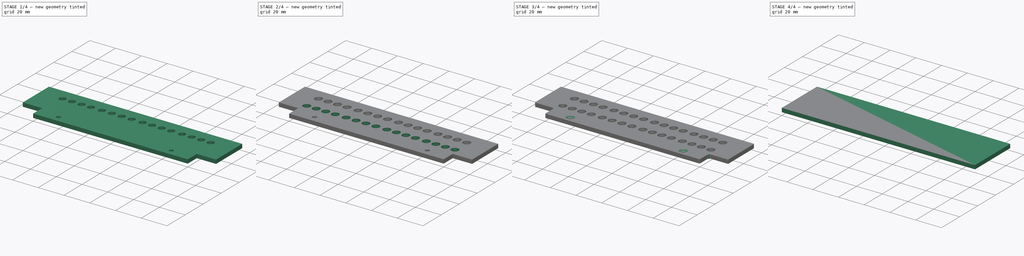
[diagram: build sequence overview — one tinted view per stage of 4, left to right]
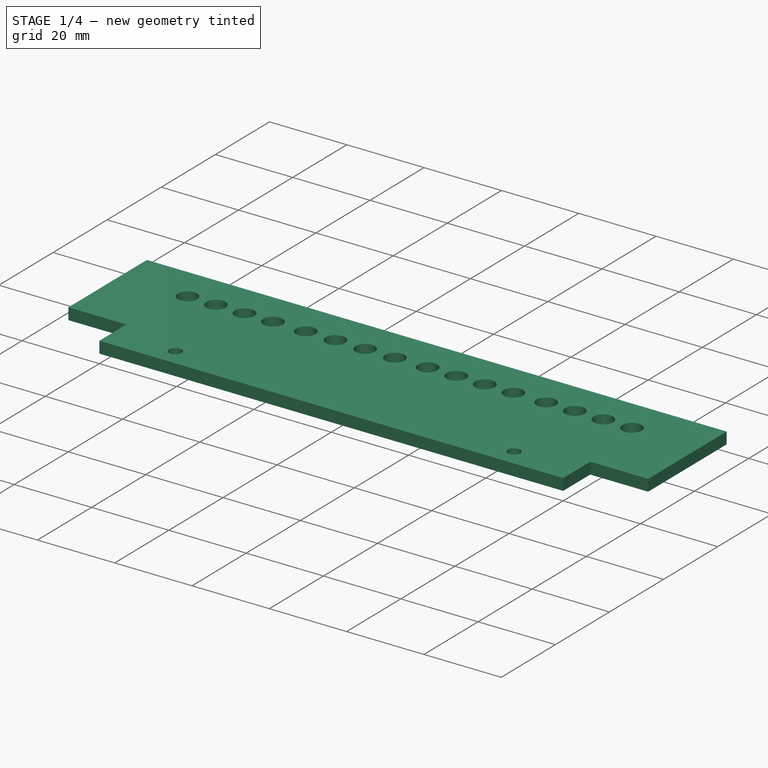
[diagram: stage 1 of 4 — iso view after this stage's code; geometry added in this stage tinted green]
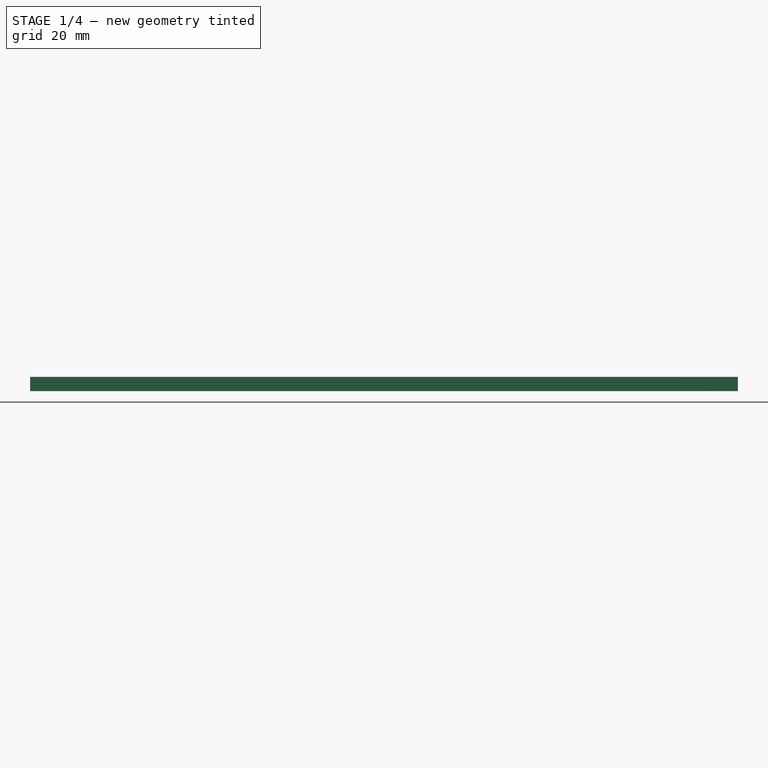
[diagram: stage 1 of 4 — front view after this stage's code; geometry added in this stage tinted green]
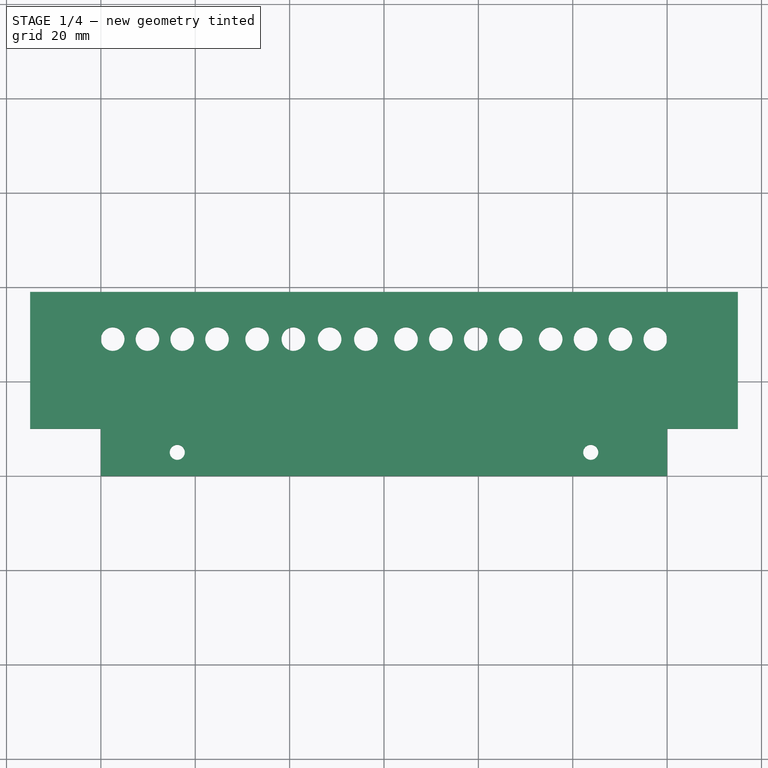
[diagram: stage 1 of 4 — top view after this stage's code; geometry added in this stage tinted green]
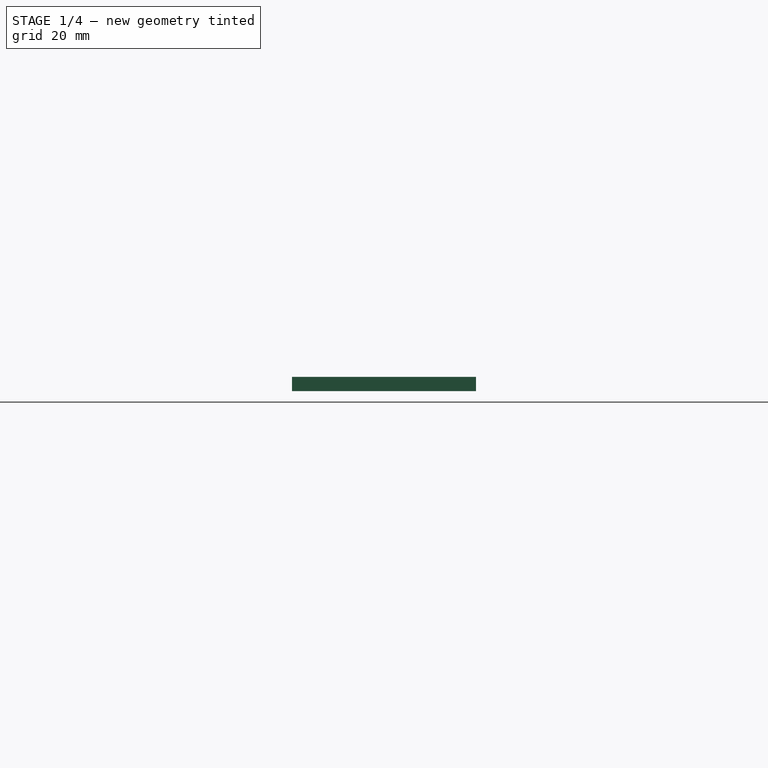
[diagram: stage 1 of 4 — right view after this stage's code; geometry added in this stage tinted green]
FCSTD DOCUMENT  (FreeCAD 0.19R23141 (Git))
Label: memory-panel
License: All rights reserved
LicenseURL: http://en.wikipedia.org/wiki/All_rights_reserved
objects: Path::FeaturePython×5, Sketcher::SketchObject×3, PartDesign::Pocket×2, PartDesign::LinearPattern×2, PartDesign::Fillet×2, Part::FeaturePython×2, PartDesign::Pad×1, PartDesign::Chamfer×1, PartDesign::Body×1, App::FeaturePython×1, App::DocumentObjectGroup×1, Path::FeatureCompoundPython×1
note: 23 computed .brp shape members not serialized (recipe doc carries the construction recipe); baked Part::Feature solids carry a one-line shape summary decoded from their .brp

FEATURE [Sketcher::SketchObject] Sketch
  MapMode = 5
  Support = -> [XY_Plane]
  sketch-geometry (10):
    g0: LineSegment StartX=-75 StartY=39 StartZ=0 EndX=-75 EndY=10 EndZ=0
    g1: LineSegment StartX=-75 StartY=10 StartZ=0 EndX=-60 EndY=10 EndZ=0
    g2: LineSegment StartX=-60 StartY=10 StartZ=0 EndX=-60 EndY=0 EndZ=0
    g3: LineSegment StartX=-60 StartY=0 StartZ=0 EndX=60 EndY=0 EndZ=0
    g4: LineSegment StartX=60 StartY=0 StartZ=0 EndX=60 EndY=10 EndZ=0
    g5: LineSegment StartX=60 StartY=10 StartZ=0 EndX=75 EndY=10 EndZ=0
    g6: LineSegment StartX=75 StartY=10 StartZ=0 EndX=75 EndY=39 EndZ=0
    g7: LineSegment StartX=75 StartY=39 StartZ=0 EndX=-75 EndY=39 EndZ=0
    g8: Circle CenterX=-43.815 CenterY=5 CenterZ=0 NormalX=0 NormalY=0 NormalZ=1 AngleXU=0 Radius=1.6
    g9: Circle CenterX=43.815 CenterY=5 CenterZ=0 NormalX=0 NormalY=0 NormalZ=1 AngleXU=0 Radius=1.6
  constraints (29):
    c: Vertical(g0)
    c: Coincident(g0,g1)
    c: Horizontal(g1)
    c: Coincident(g1,g2)
    c: PointOnObject(g2,g-1)
    c: Vertical(g2)
    c: Coincident(g2,g3)
    c: PointOnObject(g3,g-1)
    c: Coincident(g3,g4)
    c: Vertical(g4)
    c: Coincident(g4,g5)
    c: Coincident(g5,g6)
    c: Vertical(g6)
    c: Coincident(g6,g7)
    c: Coincident(g7,g0)
    c: Horizontal(g7)
    c: Symmetric(g1,g4,g-2)
    c: Symmetric(g0,g5,g-2)
    c: DistanceY(g-1,g0) = 39
    c: DistanceX(g7,g7) = 150
    c: Equal(g8,g9)
    c: Symmetric(g8,g9,g-2)
    c: Radius(g8) = 1.6
    c: DistanceX(g8,g9) = 87.63
    c: DistanceY(g2,g8) = 5
    c: DistanceY(g2,g2) = 10
    c: DistanceX(g1,g4) = 120
    c: DistanceX(g0,g8) = 31.185
    c: DistanceX(g0,g9) = 118.815
FEATURE [PartDesign::Pad] Pad
  Direction = (1,1,1)
  Length = 3
  Length2 = 100
  Profile = -> Sketch
  Refine = true
  Type = 0
FEATURE [Sketcher::SketchObject] Sketch001
  ExternalGeometry = -> [Pad]
  MapMode = 5
  Placement = pos=(0,0,3) rot=(0,0,1;0rad)
  Support = -> [Pad]
  sketch-geometry (31):
    g0: Circle CenterX=-57.5 CenterY=29 CenterZ=0 NormalX=0 NormalY=0 NormalZ=1 AngleXU=0 Radius=2.5
    g1: Circle CenterX=-50.13 CenterY=29 CenterZ=0 NormalX=0 NormalY=0 NormalZ=1 AngleXU=0 Radius=2.5
    g2: Circle CenterX=-42.7601 CenterY=29 CenterZ=0 NormalX=0 NormalY=0 NormalZ=1 AngleXU=0 Radius=2.5
    g3: Circle CenterX=-35.3901 CenterY=29 CenterZ=0 NormalX=0 NormalY=0 NormalZ=1 AngleXU=0 Radius=2.5
    g4: Circle CenterX=-26.8901 CenterY=29 CenterZ=0 NormalX=0 NormalY=0 NormalZ=1 AngleXU=0 Radius=2.5
    g5: Circle CenterX=-19.2064 CenterY=29 CenterZ=0 NormalX=0 NormalY=0 NormalZ=1 AngleXU=0 Radius=2.5
    g6: Circle CenterX=-11.5226 CenterY=29 CenterZ=0 NormalX=0 NormalY=0 NormalZ=1 AngleXU=0 Radius=2.5
    g7: Circle CenterX=-3.83886 CenterY=29 CenterZ=0 NormalX=0 NormalY=0 NormalZ=1 AngleXU=0 Radius=2.5
    g8: Circle CenterX=4.66114 CenterY=29 CenterZ=0 NormalX=0 NormalY=0 NormalZ=1 AngleXU=0 Radius=2.5
    g9: Circle CenterX=12.0487 CenterY=29 CenterZ=0 NormalX=0 NormalY=0 NormalZ=1 AngleXU=0 Radius=2.5
    g10: Circle CenterX=19.4363 CenterY=29 CenterZ=0 NormalX=0 NormalY=0 NormalZ=1 AngleXU=0 Radius=2.5
    g11: Circle CenterX=26.8239 CenterY=29 CenterZ=0 NormalX=0 NormalY=0 NormalZ=1 AngleXU=0 Radius=2.5
    g12: Circle CenterX=35.3239 CenterY=29 CenterZ=0 NormalX=0 NormalY=0 NormalZ=1 AngleXU=0 Radius=2.5
    g13: Circle CenterX=42.716 CenterY=29 CenterZ=0 NormalX=0 NormalY=0 NormalZ=1 AngleXU=0 Radius=2.5
    g14: Circle CenterX=50.108 CenterY=29 CenterZ=0 NormalX=0 NormalY=0 NormalZ=1 AngleXU=0 Radius=2.5
    g15: Circle CenterX=57.5 CenterY=29 CenterZ=0 NormalX=0 NormalY=0 NormalZ=1 AngleXU=0 Radius=2.5
    g16: LineSegment [constr] StartX=-57.5 StartY=29 StartZ=0 EndX=-50.13 EndY=29 EndZ=0
    g17: LineSegment [constr] StartX=-50.13 StartY=29 StartZ=0 EndX=-42.7601 EndY=29 EndZ=0
    g18: LineSegment [constr] StartX=-42.7601 StartY=29 StartZ=0 EndX=-35.3901 EndY=29 EndZ=0
    g19: LineSegment [constr] StartX=-26.8901 StartY=29 StartZ=0 EndX=-19.2064 EndY=29 EndZ=0
    g20: LineSegment [constr] StartX=-19.2064 StartY=29 StartZ=0 EndX=-11.5226 EndY=29 EndZ=0
    g21: LineSegment [constr] StartX=-11.5226 StartY=29 StartZ=0 EndX=-3.83886 EndY=29 EndZ=0
    g22: LineSegment [constr] StartX=4.66114 StartY=29 StartZ=0 EndX=12.0487 EndY=29 EndZ=0
    g23: LineSegment [constr] StartX=12.0487 StartY=29 StartZ=0 EndX=19.4363 EndY=29 EndZ=0
    g24: LineSegment [constr] StartX=19.4363 StartY=29 StartZ=0 EndX=26.8239 EndY=29 EndZ=0
    g25: LineSegment [constr] StartX=35.3239 StartY=29 StartZ=0 EndX=42.716 EndY=29 EndZ=0
    g26: LineSegment [constr] StartX=42.716 StartY=29 StartZ=0 EndX=50.108 EndY=29 EndZ=0
    g27: LineSegment [constr] StartX=50.108 StartY=29 StartZ=0 EndX=57.5 EndY=29 EndZ=0
    g28: LineSegment [constr] StartX=-35.3901 StartY=29 StartZ=0 EndX=-26.8901 EndY=29 EndZ=0
    g29: LineSegment [constr] StartX=-3.83886 StartY=29 StartZ=0 EndX=4.66114 EndY=29 EndZ=0
    g30: LineSegment [constr] StartX=26.8239 StartY=29 StartZ=0 EndX=35.3239 EndY=29 EndZ=0
  constraints (78):
    c: Equal(g1,g0)
    c: Equal(g0,g2)
    c: Equal(g2,g3)
    c: Radius(g0) = 2.5
    c: Horizontal(g0,g1)
    c: Horizontal(g1,g2)
    c: Horizontal(g2,g3)
    c: Equal(g5,g4)
    c: Equal(g4,g6)
    c: Equal(g6,g7)
    c: Equal(g0,g4) = 2.5
    c: Horizontal(g4,g5)
    c: Horizontal(g5,g6)
    c: Horizontal(g6,g7)
    c: Equal(g9,g8)
    c: Equal(g8,g10)
    c: Equal(g10,g11)
    c: Equal(g0,g8) = 2.5
    c: Horizontal(g8,g9)
    c: Horizontal(g9,g10)
    c: Horizontal(g10,g11)
    c: Equal(g13,g12)
    c: Equal(g12,g14)
    c: Equal(g14,g15)
    c: Equal(g8,g12) = 2.5
    c: Horizontal(g12,g13)
    c: Horizontal(g13,g14)
    c: Horizontal(g14,g15)
    c: Horizontal(g0,g4)
    c: Horizontal(g4,g8)
    c: Coincident(g16,g0)
    c: Coincident(g16,g1)
    c: Coincident(g17,g1)
    c: Coincident(g17,g2)
    c: Coincident(g18,g2)
    c: Coincident(g18,g3)
    c: Coincident(g19,g4)
    c: Coincident(g19,g5)
    c: Coincident(g20,g5)
    c: Coincident(g20,g6)
    c: Coincident(g21,g7)
    c: Coincident(g22,g8)
    c: Coincident(g22,g9)
    c: Coincident(g23,g9)
    c: Coincident(g23,g10)
    c: Coincident(g24,g10)
    c: Coincident(g24,g11)
    c: Coincident(g25,g12)
    c: Coincident(g25,g13)
    c: Coincident(g26,g13)
    c: Coincident(g26,g14)
    c: Coincident(g27,g14)
    c: Coincident(g27,g15)
    c: Symmetric(g0,g15,g-2)
    c: Equal(g16,g17)
    c: Equal(g17,g18)
    c: Equal(g19,g20)
    c: Equal(g20,g21)
    c: Equal(g22,g23)
    c: Equal(g23,g24)
    c: Equal(g25,g26)
    c: Equal(g26,g27)
    c: DistanceX(g0,g15) = 115
    c: Coincident(g6,g21)
    c: DistanceY(g0,g-3) = 10
    c: Coincident(g28,g3)
    c: Coincident(g28,g4)
    c: Coincident(g29,g7)
    c: Coincident(g29,g8)
    c: Coincident(g30,g11)
    c: Coincident(g30,g12)
    c: Equal(g30,g29)
    c: Equal(g29,g28)
    c: DistanceX(g28,g28) = 8.5
    c: DistanceX(g23,g23) = 7.3876
    c: DistanceX(g0,g1) = 7.36997
    c: DistanceX(g0,g4) = 30.6099
    c: DistanceY(g-1,g0) = 29
FEATURE [PartDesign::Pocket] Pocket
  BaseFeature = -> Pad
  Length = 5
  Length2 = 100
  Profile = -> Sketch001
  Refine = true
  Type = 1
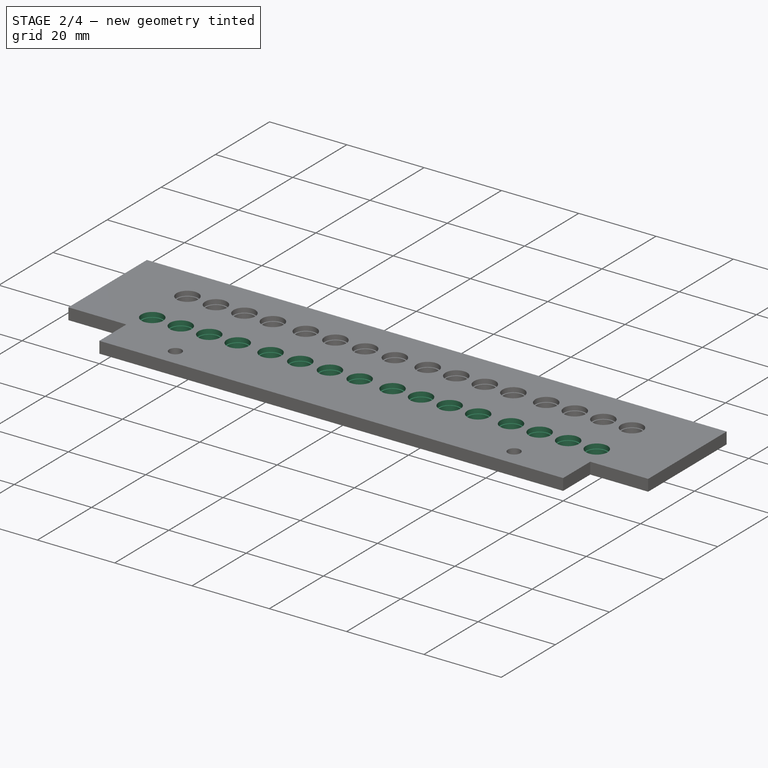
[diagram: stage 2 of 4 — iso view after this stage's code; geometry added in this stage tinted green]
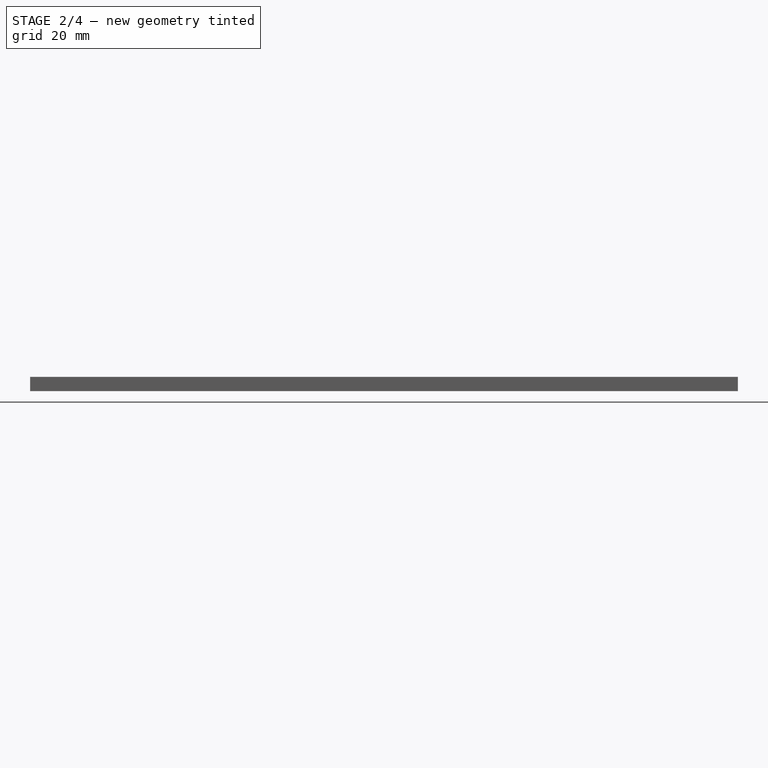
[diagram: stage 2 of 4 — front view after this stage's code; geometry added in this stage tinted green]
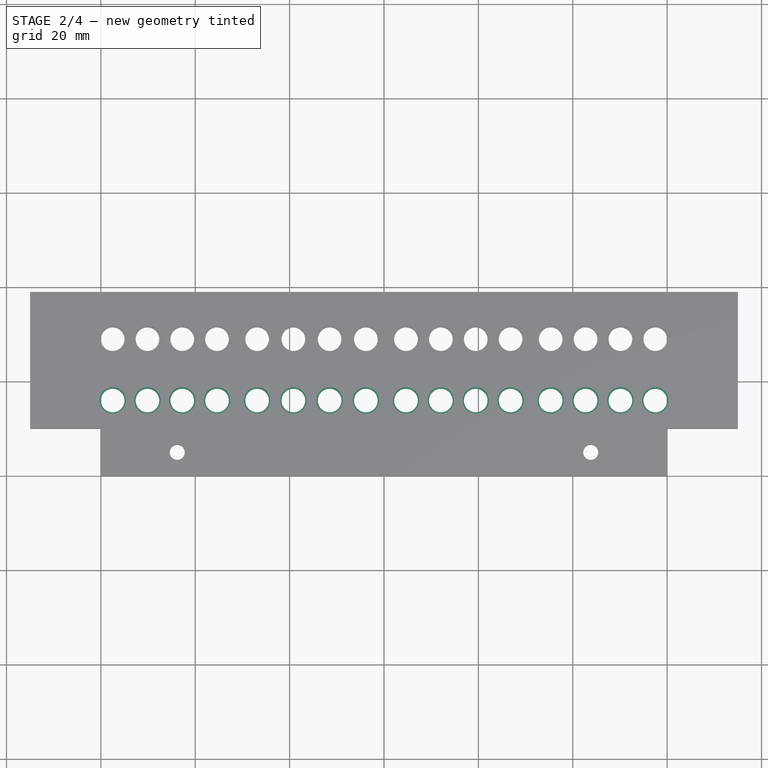
[diagram: stage 2 of 4 — top view after this stage's code; geometry added in this stage tinted green]
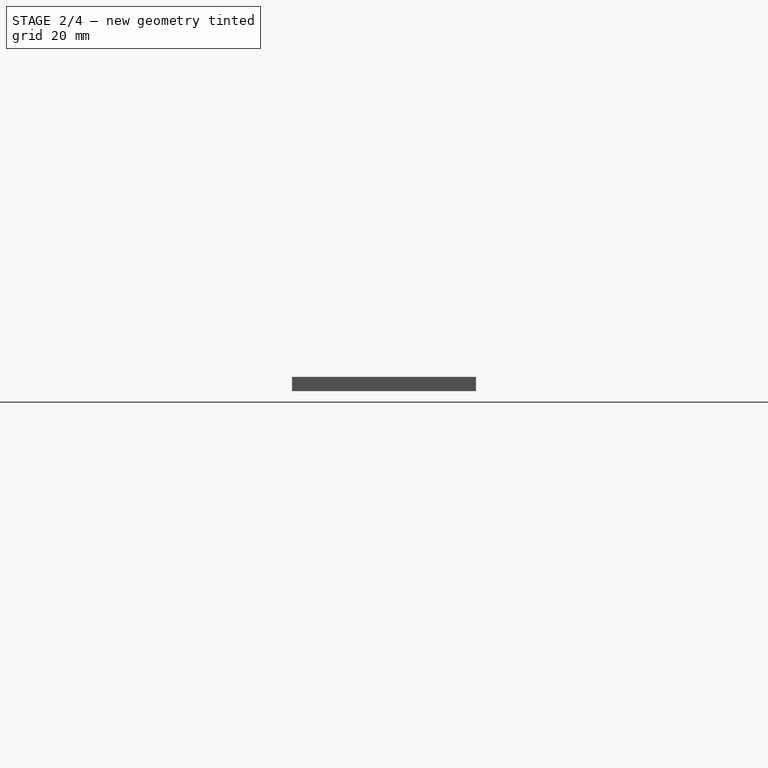
[diagram: stage 2 of 4 — right view after this stage's code; geometry added in this stage tinted green]
FEATURE [PartDesign::LinearPattern] LinearPattern
  BaseFeature = -> Pocket
  Direction = -> Sketch001 [V_Axis]
  Length = 13
  Occurrences = 2
  Originals = -> [Pocket]
  Refine = true
  Reversed = true
FEATURE [Sketcher::SketchObject] Sketch002
  ExternalGeometry = -> [Pad]
  MapMode = 5
  Placement = pos=(0,0,3) rot=(0,0,1;0rad)
  Support = -> [Pad]
  sketch-geometry (31):
    g0: Circle CenterX=-57.5 CenterY=29 CenterZ=0 NormalX=0 NormalY=0 NormalZ=1 AngleXU=0 Radius=2.8
    g1: Circle CenterX=-50.13 CenterY=29 CenterZ=0 NormalX=0 NormalY=0 NormalZ=1 AngleXU=0 Radius=2.8
    g2: Circle CenterX=-42.7601 CenterY=29 CenterZ=0 NormalX=0 NormalY=0 NormalZ=1 AngleXU=0 Radius=2.8
    g3: Circle CenterX=-35.3901 CenterY=29 CenterZ=0 NormalX=0 NormalY=0 NormalZ=1 AngleXU=0 Radius=2.8
    g4: Circle CenterX=-26.8901 CenterY=29 CenterZ=0 NormalX=0 NormalY=0 NormalZ=1 AngleXU=0 Radius=2.8
    g5: Circle CenterX=-19.2064 CenterY=29 CenterZ=0 NormalX=0 NormalY=0 NormalZ=1 AngleXU=0 Radius=2.8
    g6: Circle CenterX=-11.5226 CenterY=29 CenterZ=0 NormalX=0 NormalY=0 NormalZ=1 AngleXU=0 Radius=2.8
    g7: Circle CenterX=-3.83886 CenterY=29 CenterZ=0 NormalX=0 NormalY=0 NormalZ=1 AngleXU=0 Radius=2.8
    g8: Circle CenterX=4.66114 CenterY=29 CenterZ=0 NormalX=0 NormalY=0 NormalZ=1 AngleXU=0 Radius=2.8
    g9: Circle CenterX=12.0487 CenterY=29 CenterZ=0 NormalX=0 NormalY=0 NormalZ=1 AngleXU=0 Radius=2.8
    g10: Circle CenterX=19.4363 CenterY=29 CenterZ=0 NormalX=0 NormalY=0 NormalZ=1 AngleXU=0 Radius=2.8
    g11: Circle CenterX=26.8239 CenterY=29 CenterZ=0 NormalX=0 NormalY=0 NormalZ=1 AngleXU=0 Radius=2.8
    g12: Circle CenterX=35.3239 CenterY=29 CenterZ=0 NormalX=0 NormalY=0 NormalZ=1 AngleXU=0 Radius=2.8
    g13: Circle CenterX=42.716 CenterY=29 CenterZ=0 NormalX=0 NormalY=0 NormalZ=1 AngleXU=0 Radius=2.8
    g14: Circle CenterX=50.108 CenterY=29 CenterZ=0 NormalX=0 NormalY=0 NormalZ=1 AngleXU=0 Radius=2.8
    g15: Circle CenterX=57.5 CenterY=29 CenterZ=0 NormalX=0 NormalY=0 NormalZ=1 AngleXU=0 Radius=2.8
    g16: LineSegment [constr] StartX=-57.5 StartY=29 StartZ=0 EndX=-50.13 EndY=29 EndZ=0
    g17: LineSegment [constr] StartX=-50.13 StartY=29 StartZ=0 EndX=-42.7601 EndY=29 EndZ=0
    g18: LineSegment [constr] StartX=-42.7601 StartY=29 StartZ=0 EndX=-35.3901 EndY=29 EndZ=0
    g19: LineSegment [constr] StartX=-26.8901 StartY=29 StartZ=0 EndX=-19.2064 EndY=29 EndZ=0
    g20: LineSegment [constr] StartX=-19.2064 StartY=29 StartZ=0 EndX=-11.5226 EndY=29 EndZ=0
    g21: LineSegment [constr] StartX=-11.5226 StartY=29 StartZ=0 EndX=-3.83886 EndY=29 EndZ=0
    g22: LineSegment [constr] StartX=4.66114 StartY=29 StartZ=0 EndX=12.0487 EndY=29 EndZ=0
    g23: LineSegment [constr] StartX=12.0487 StartY=29 StartZ=0 EndX=19.4363 EndY=29 EndZ=0
    g24: LineSegment [constr] StartX=19.4363 StartY=29 StartZ=0 EndX=26.8239 EndY=29 EndZ=0
    g25: LineSegment [constr] StartX=35.3239 StartY=29 StartZ=0 EndX=42.716 EndY=29 EndZ=0
    g26: LineSegment [constr] StartX=42.716 StartY=29 StartZ=0 EndX=50.108 EndY=29 EndZ=0
    g27: LineSegment [constr] StartX=50.108 StartY=29 StartZ=0 EndX=57.5 EndY=29 EndZ=0
    g28: LineSegment [constr] StartX=-35.3901 StartY=29 StartZ=0 EndX=-26.8901 EndY=29 EndZ=0
    g29: LineSegment [constr] StartX=-3.83886 StartY=29 StartZ=0 EndX=4.66114 EndY=29 EndZ=0
    g30: LineSegment [constr] StartX=26.8239 StartY=29 StartZ=0 EndX=35.3239 EndY=29 EndZ=0
  constraints (75):
    c: Equal(g1,g0)
    c: Equal(g0,g2)
    c: Equal(g2,g3)
    c: Radius(g0) = 2.8
    c: Horizontal(g0,g1)
    c: Horizontal(g1,g2)
    c: Horizontal(g2,g3)
    c: Equal(g5,g4)
    c: Equal(g4,g6)
    c: Equal(g6,g7)
    c: Equal(g0,g4) = 2.5
    c: Horizontal(g4,g5)
    c: Horizontal(g5,g6)
    c: Horizontal(g6,g7)
    c: Equal(g9,g8)
    c: Equal(g8,g10)
    c: Equal(g10,g11)
    c: Equal(g0,g8) = 2.5
    c: Horizontal(g8,g9)
    c: Horizontal(g9,g10)
    c: Horizontal(g10,g11)
    c: Equal(g13,g12)
    c: Equal(g12,g14)
    c: Equal(g14,g15)
    c: Equal(g8,g12) = 2.5
    c: Horizontal(g12,g13)
    c: Horizontal(g13,g14)
    c: Horizontal(g14,g15)
    c: Horizontal(g0,g4)
    c: Horizontal(g4,g8)
    c: Coincident(g16,g0)
    c: Coincident(g16,g1)
    c: Coincident(g17,g1)
    c: Coincident(g17,g2)
    c: Coincident(g18,g2)
    c: Coincident(g18,g3)
    c: Coincident(g19,g4)
    c: Coincident(g19,g5)
    c: Coincident(g20,g5)
    c: Coincident(g20,g6)
    c: Coincident(g21,g7)
    c: Coincident(g22,g8)
    c: Coincident(g22,g9)
    c: Coincident(g23,g9)
    c: Coincident(g23,g10)
    c: Coincident(g24,g10)
    c: Coincident(g24,g11)
    c: Coincident(g25,g12)
    c: Coincident(g25,g13)
    c: Coincident(g26,g13)
    c: Coincident(g26,g14)
    c: Coincident(g27,g14)
    c: Coincident(g27,g15)
    c: Symmetric(g0,g15,g-2)
    c: Equal(g16,g17)
    c: Equal(g17,g18)
    c: Equal(g19,g20)
    c: Equal(g20,g21)
    c: Equal(g22,g23)
    c: Equal(g23,g24)
    c: Equal(g25,g26)
    c: Equal(g26,g27)
    c: DistanceX(g0,g15) = 115
    c: Coincident(g6,g21)
    c: DistanceY(g0,g-3) = 10
    c: Coincident(g28,g3)
    c: Coincident(g28,g4)
    c: Coincident(g29,g7)
    c: Coincident(g29,g8)
    c: Coincident(g30,g11)
    c: Coincident(g30,g12)
    c: Equal(g30,g29)
    c: Equal(g29,g28)
    c: DistanceX(g28,g28) = 8.5
    c: DistanceX(g23,g23) = 7.3876
FEATURE [PartDesign::Pocket] Pocket001
  BaseFeature = -> LinearPattern
  Length = 1.2
  Length2 = 100
  Profile = -> Sketch002
  Refine = true
  Type = 0
FEATURE [PartDesign::LinearPattern] LinearPattern001
  BaseFeature = -> Pocket001
  Direction = -> Sketch002 [V_Axis]
  Length = 13
  Occurrences = 2
  Originals = -> [Pocket001]
  Refine = true
  Reversed = true
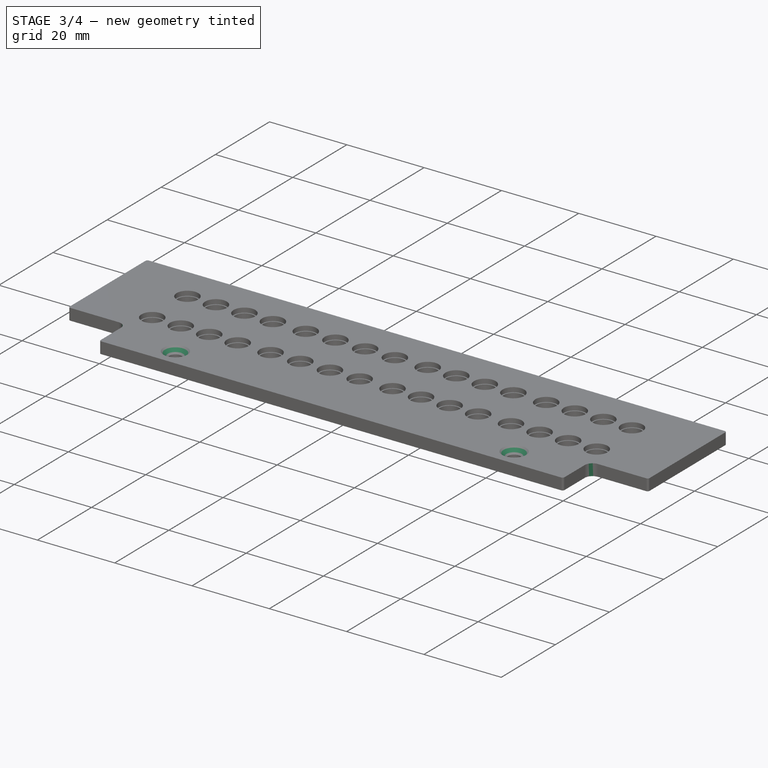
[diagram: stage 3 of 4 — iso view after this stage's code; geometry added in this stage tinted green]
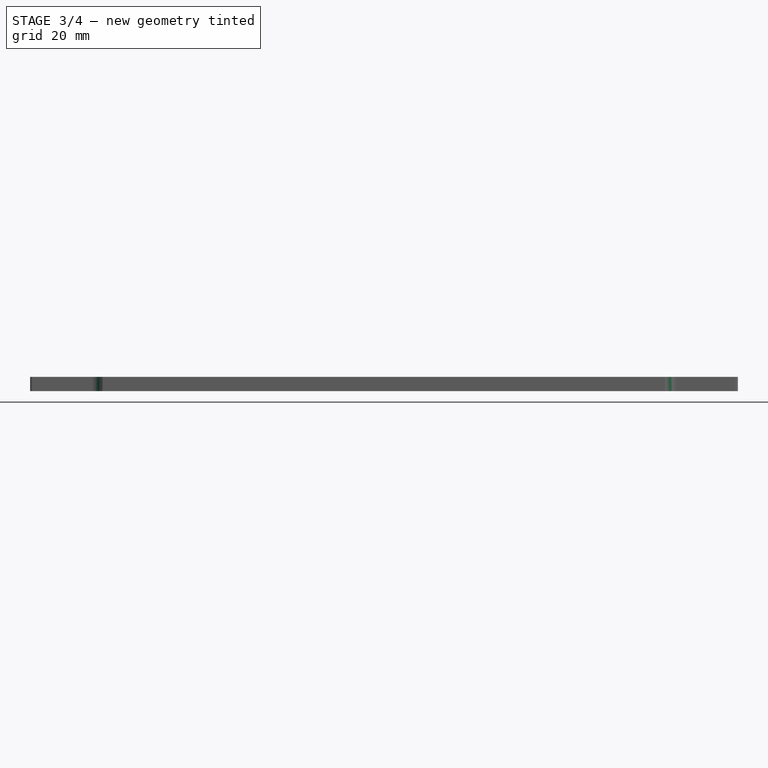
[diagram: stage 3 of 4 — front view after this stage's code; geometry added in this stage tinted green]
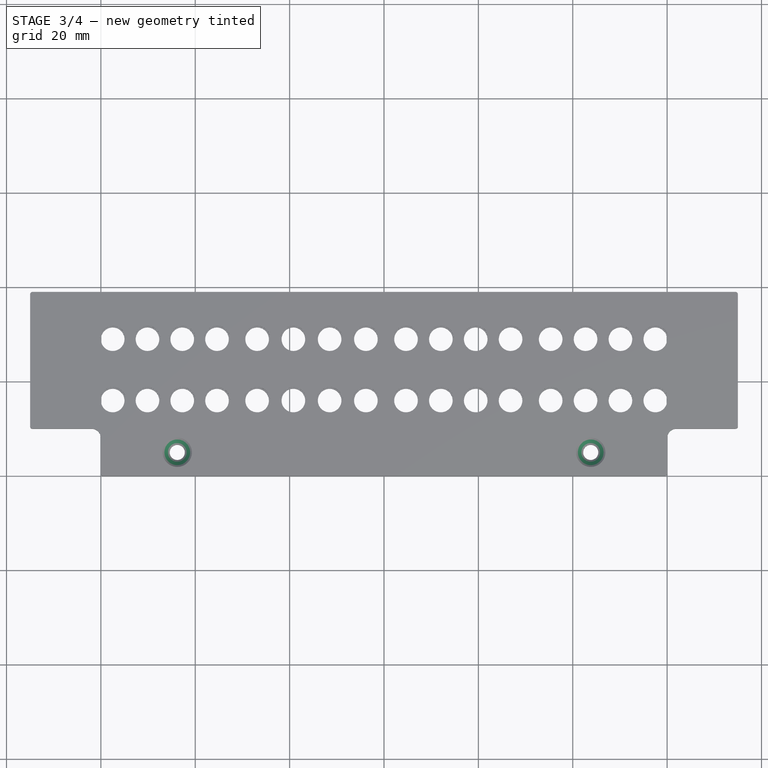
[diagram: stage 3 of 4 — top view after this stage's code; geometry added in this stage tinted green]
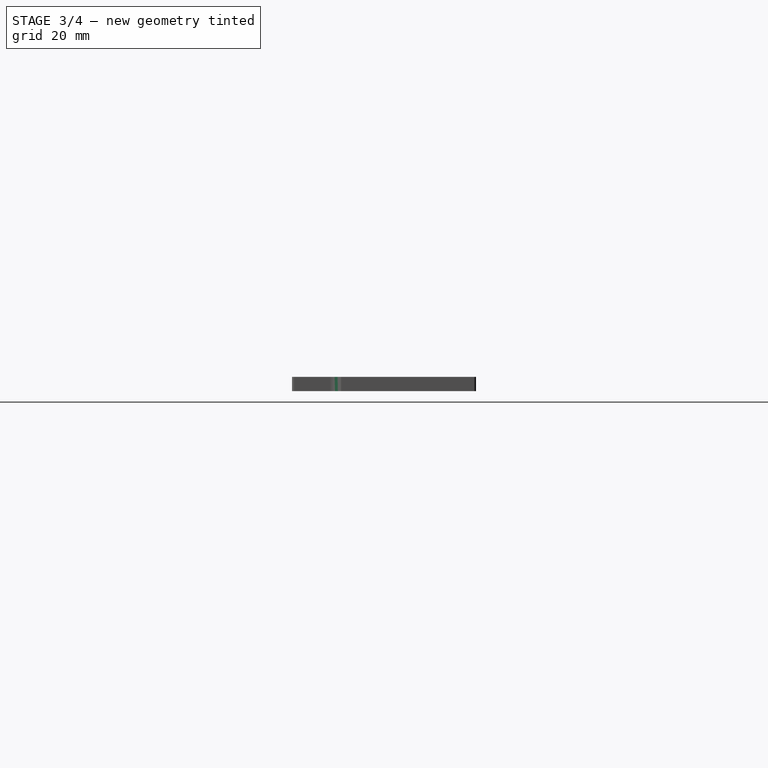
[diagram: stage 3 of 4 — right view after this stage's code; geometry added in this stage tinted green]
FEATURE [PartDesign::Chamfer] Chamfer
  Angle = 45
  Base = -> LinearPattern001 [Edge55,Edge64]
  BaseFeature = -> LinearPattern001
  ChamferType = 0
  FlipDirection = false
  Refine = true
  Size = 1.5
  Size2 = 1
  SupportTransform = false
FEATURE [PartDesign::Fillet] Fillet
  Base = -> Chamfer [Edge56,Edge50]
  BaseFeature = -> Chamfer
  Radius = 2
  Refine = true
  SupportTransform = false
FEATURE [PartDesign::Fillet] Fillet001
  Base = -> Fillet [Edge58,Edge56,Edge53,Edge47,Edge50,Edge54]
  BaseFeature = -> Fillet
  Radius = 0.5
  Refine = true
  SupportTransform = false
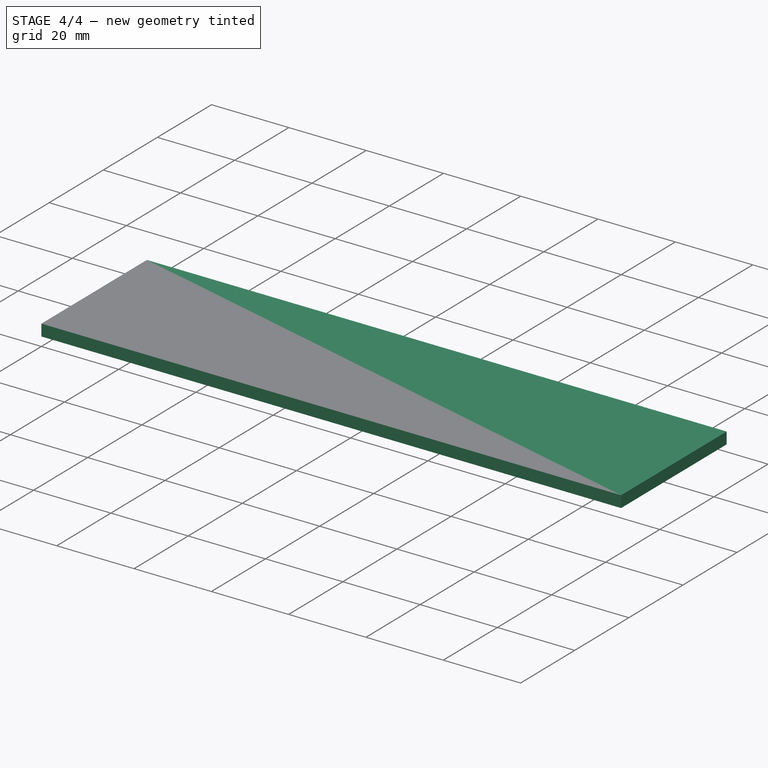
[diagram: stage 4 of 4 — iso view after this stage's code; geometry added in this stage tinted green]
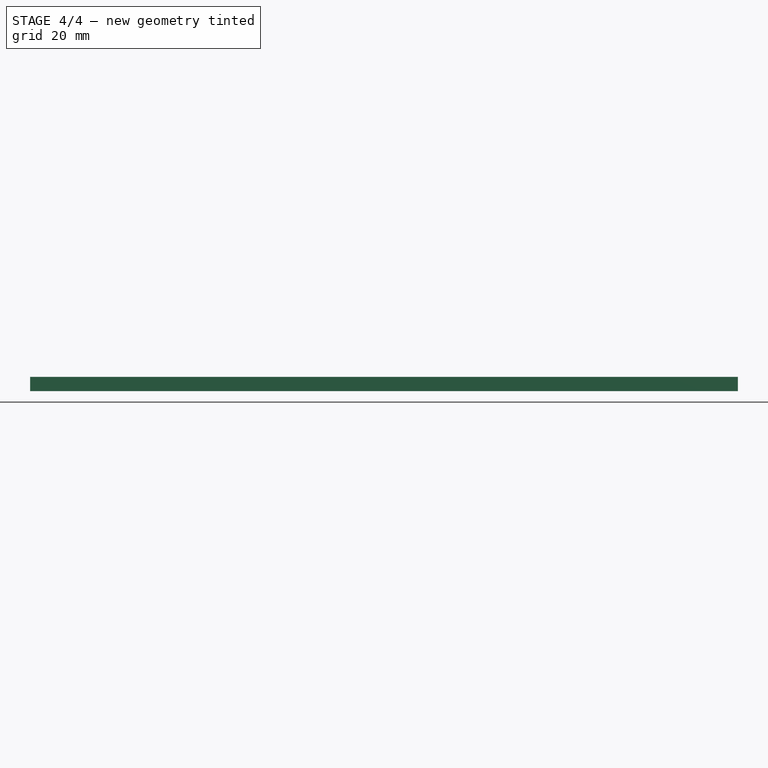
[diagram: stage 4 of 4 — front view after this stage's code; geometry added in this stage tinted green]
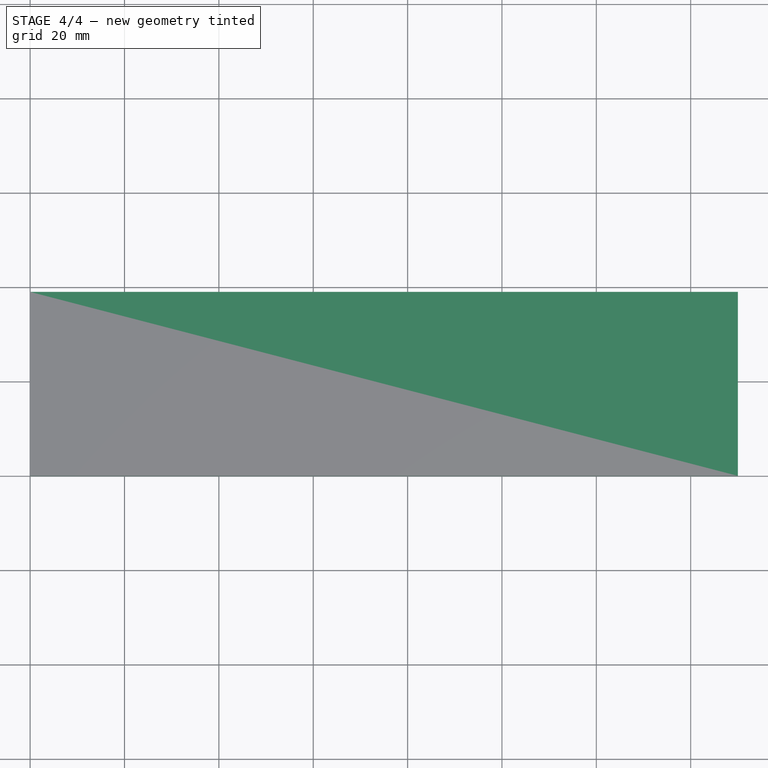
[diagram: stage 4 of 4 — top view after this stage's code; geometry added in this stage tinted green]
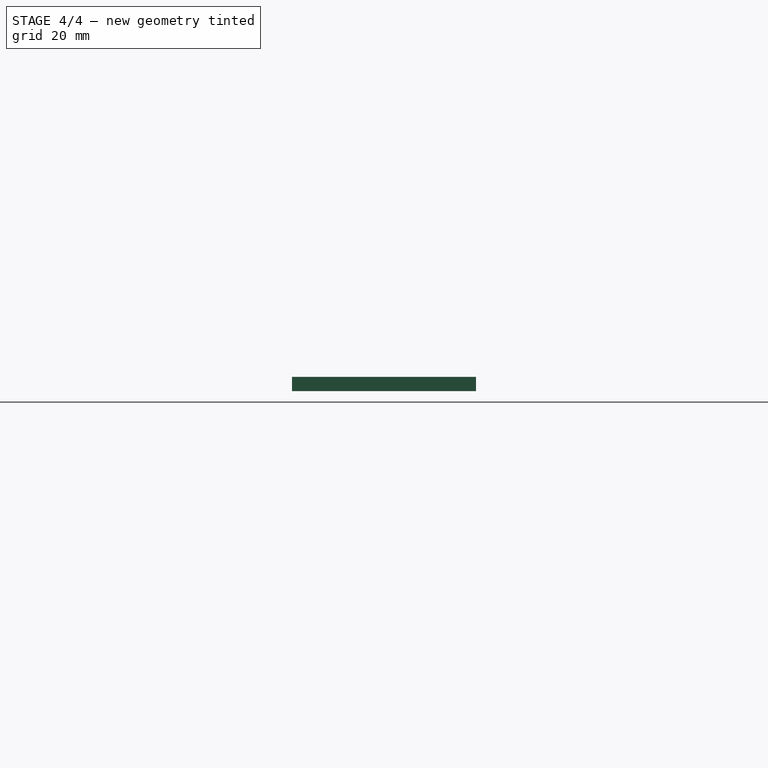
[diagram: stage 4 of 4 — right view after this stage's code; geometry added in this stage tinted green]
FEATURE [PartDesign::Body] Body
  Group = -> [Sketch,Pad,Sketch001,Pocket,LinearPattern,Pocket001,Sketch002,LinearPattern001,Chamfer,Fillet,Fillet001]
  Origin = -> Origin
  Tip = -> Fillet001
FEATURE [App::FeaturePython] SetupSheet  # Path/CAM operation (typed FeaturePython)
  ClearanceHeightExpression = OpStockZMax+SetupSheet.ClearanceHeightOffset
  ClearanceHeightOffset = 5
  CoolantMode = 0
  CoolantModes = None | Flood | Mist
  FinalDepthExpression = OpFinalDepth
  HorizRapid = 0
  SafeHeightExpression = OpStockZMax+SetupSheet.SafeHeightOffset
  SafeHeightOffset = 3
  StartDepthExpression = OpStartDepth
  StepDownExpression = OpToolDiameter
  VertRapid = 0
FEATURE [Part::FeaturePython] Clone  label="Model-Body"  # Draft clone (typed FeaturePython)
  AttacherType = Attacher::AttachEngine3D
  Fuse = false
  Objects = -> [Body]
  PathResource = Model
  Placement = pos=(75,1e-16,-3) rot=(0,0,1;0rad)
  Scale = (1,1,1)
FEATURE [App::DocumentObjectGroup] Model
  Group = -> [Clone]
FEATURE [Path::FeaturePython] Default_Tool  label="TC: Default Tool"  # Path/CAM operation (typed FeaturePython)
  HorizFeed = 3
  HorizRapid = 0
  SpindleDir = 0
  SpindleSpeed = 24000
  ToolNumber = 1
  VertFeed = 0.833333
  VertRapid = 0
  expr: HorizRapid = SetupSheet.HorizRapid
  expr: VertRapid = SetupSheet.VertRapid
FEATURE [Part::FeaturePython] Stock  # WARN: FeaturePython — macro-defined, semantics opaque (R4)
  Base = -> Model
  ExtXneg = 0
  ExtXpos = 0
  ExtYneg = 0
  ExtYpos = 0
  ExtZneg = 0
  ExtZpos = 0
  Placement = pos=(0,0,-3) rot=(0,0,1;0rad)
  StockType = FromBase
FEATURE [Path::FeaturePython] Profile  # Path/CAM operation (typed FeaturePython)
  Active = true
  AreaParams:
    Tolerance = 1e-07
    FitArcs = True
    Simplify = False
    CleanDistance = 0.0
    Accuracy = 0.01
    Unit = 1.0
    MinArcPoints = 4
    MaxArcPoints = 100
    ClipperScale = 10000000.0
    Fill = 0
    Coplanar = 0
    Reorient = True
    Outline = False
    Explode = False
    OpenMode = 0
    Deflection = 0.01
    SubjectFill = 0
    ClipFill = 0
    Offset = -2.0
    ExtraPass = 0
    Stepover = 0.0
    LastStepover = 0.0
    JoinType = 0
    EndType = 0
    MiterLimit = 2.0
    RoundPrecision = 0.0
    PocketMode = 0
    ToolRadius = 1.0
    PocketExtraOffset = 0.0
    PocketStepover = 0.0
    PocketLastStepover = 0.0
    FromCenter = False
    Angle = 45.0
    AngleShift = 0.0
    Shift = 0.0
    Thicken = False
    SectionCount = -1
    Stepdown = 1.0
    SectionOffset = 0.0
    SectionTolerance = 1e-06
    SectionMode = 2
    Project = False
  AttemptInverseAngle = true
  Base = -> [Clone]
  ClearanceHeight = 5
  CoolantMode = None
  CycleTime = 00:15:00
  Direction = 0
  EnableRotation = 0
  ExpandProfile = 0
  ExpandProfileStepOver = 100
  FinalDepth = -3.2
  HandleMultipleFeatures = 1
  InverseAngle = false
  JoinType = 0
  LimitDepthToFace = true
  MiterLimit = 0.1
  OffsetExtra = 0
  OpFinalDepth = -3
  OpStartDepth = 0
  OpStockZMax = 0
  OpStockZMin = -3
  OpToolDiameter = 4
  PathParams = {'orientation': 0, 'feedrate': 3.0, 'feedrate_v': 0.8333333333333334, 'verbose': True, 'resume_height': 3.0, 'retraction': 5.0, 'return_end': True, 'preamble': False, 'start': Vector (0.0, 0.0, 5.0)}
  ReverseDirection = false
  SafeHeight = 3
  Side = 0
  StartDepth = 0
  StartPoint = (0,0,0)
  StepDown = 0.3
  ToolController = -> Default_Tool
  UseComp = true
  UseStartPoint = false
  processCircles = true
  processHoles = true
  processPerimeter = false
  expr: ClearanceHeight = OpStockZMax + SetupSheet.ClearanceHeightOffset
  expr: SafeHeight = OpStockZMax + SetupSheet.SafeHeightOffset
  expr: StepDown = 0.3
  expr: FinalDepth = -3.2
  expr: StartDepth = OpStartDepth
FEATURE [Path::FeaturePython] Profile001  # Path/CAM operation (typed FeaturePython)
  Active = true
  AreaParams:
    Tolerance = 1e-07
    FitArcs = True
    Simplify = False
    CleanDistance = 0.0
    Accuracy = 0.01
    Unit = 1.0
    MinArcPoints = 4
    MaxArcPoints = 100
    ClipperScale = 10000000.0
    Fill = 0
    Coplanar = 0
    Reorient = True
    Outline = False
    Explode = False
    OpenMode = 0
    Deflection = 0.01
    SubjectFill = 0
    ClipFill = 0
    Offset = -2.0
    ExtraPass = 0
    Stepover = 0.0
    LastStepover = 0.0
    JoinType = 0
    EndType = 0
    MiterLimit = 2.0
    RoundPrecision = 0.0
    PocketMode = 0
    ToolRadius = 1.0
    PocketExtraOffset = 0.0
    PocketStepover = 0.0
    PocketLastStepover = 0.0
    FromCenter = False
    Angle = 45.0
    AngleShift = 0.0
    Shift = 0.0
    Thicken = False
    SectionCount = -1
    Stepdown = 1.0
    SectionOffset = 0.0
    SectionTolerance = 1e-06
    SectionMode = 2
    Project = False
  AttemptInverseAngle = true
  Base = -> [Clone]
  ClearanceHeight = 5
  CoolantMode = None
  CycleTime = 00:11:08
  Direction = 0
  EnableRotation = 0
  ExpandProfile = 0
  ExpandProfileStepOver = 100
  FinalDepth = -1.2
  HandleMultipleFeatures = 1
  InverseAngle = false
  JoinType = 0
  LimitDepthToFace = true
  MiterLimit = 0.1
  OffsetExtra = 0
  OpFinalDepth = -1.2
  OpStartDepth = 0
  OpStockZMax = 0
  OpStockZMin = -3
  OpToolDiameter = 4
  PathParams = {'orientation': 1, 'feedrate': 3.0, 'feedrate_v': 0.8333333333333334, 'verbose': True, 'resume_height': 3.0, 'retraction': 5.0, 'return_end': True, 'preamble': False, 'start': Vector (25.66378371115098, 29.000000331438816, 5.0)}
  ReverseDirection = false
  SafeHeight = 3
  Side = 1
  StartDepth = 0
  StartPoint = (0,0,0)
  StepDown = 0.3
  ToolController = -> Default_Tool
  UseComp = true
  UseStartPoint = false
  processCircles = false
  processHoles = false
  processPerimeter = true
  expr: ClearanceHeight = OpStockZMax + SetupSheet.ClearanceHeightOffset
  expr: SafeHeight = OpStockZMax + SetupSheet.SafeHeightOffset
  expr: StepDown = 0.3
  expr: FinalDepth = OpFinalDepth
  expr: StartDepth = OpStartDepth
FEATURE [Path::FeaturePython] Profile002  # Path/CAM operation (typed FeaturePython)
  Active = true
  AreaParams:
    Tolerance = 1e-07
    FitArcs = True
    Simplify = False
    CleanDistance = 0.0
    Accuracy = 0.01
    Unit = 1.0
    MinArcPoints = 4
    MaxArcPoints = 100
    ClipperScale = 10000000.0
    Fill = 0
    Coplanar = 0
    Reorient = True
    Outline = False
    Explode = False
    OpenMode = 0
    Deflection = 0.01
    SubjectFill = 0
    ClipFill = 0
    Offset = 2.0
    ExtraPass = 0
    Stepover = 0.0
    LastStepover = 0.0
    JoinType = 0
    EndType = 0
    MiterLimit = 2.0
    RoundPrecision = 0.0
    PocketMode = 0
    ToolRadius = 1.0
    PocketExtraOffset = 0.0
    PocketStepover = 0.0
    PocketLastStepover = 0.0
    FromCenter = False
    Angle = 45.0
    AngleShift = 0.0
    Shift = 0.0
    Thicken = False
    SectionCount = -1
    Stepdown = 1.0
    SectionOffset = 0.0
    SectionTolerance = 1e-06
    SectionMode = 2
    Project = False
  AttemptInverseAngle = true
  ClearanceHeight = 5
  CoolantMode = None
  CycleTime = 00:24:25
  Direction = 0
  EnableRotation = 0
  ExpandProfile = 0
  ExpandProfileStepOver = 100
  FinalDepth = -3.2
  HandleMultipleFeatures = 1
  InverseAngle = false
  JoinType = 0
  LimitDepthToFace = true
  MiterLimit = 0.1
  OffsetExtra = 0
  OpFinalDepth = -3
  OpStartDepth = 0
  OpStockZMax = 0
  OpStockZMin = -3
  OpToolDiameter = 4
  PathParams = {'orientation': 1, 'feedrate': 3.0, 'feedrate_v': 0.8333333333333334, 'verbose': True, 'resume_height': 3.0, 'retraction': 5.0, 'return_end': True, 'preamble': False}
  ReverseDirection = false
  SafeHeight = 3
  Side = 0
  StartDepth = 0
  StartPoint = (0,0,0)
  StepDown = 0.3
  ToolController = -> Default_Tool
  UseComp = true
  UseStartPoint = false
  processCircles = false
  processHoles = false
  processPerimeter = true
  expr: ClearanceHeight = OpStockZMax + SetupSheet.ClearanceHeightOffset
  expr: SafeHeight = OpStockZMax + SetupSheet.SafeHeightOffset
  expr: StepDown = 0.3
  expr: FinalDepth = -3.2
  expr: StartDepth = OpStartDepth
FEATURE [Path::FeatureCompoundPython] Operations  # Path/CAM operation (typed FeaturePython)
  Group = -> [Profile,Profile001,Profile002]
  UsePlacements = false
FEATURE [Path::FeaturePython] Job  # Path/CAM operation (typed FeaturePython)
  CycleTime = 00:50:33
  Fixtures = G54
  GeometryTolerance = 0.01
  LastPostProcessDate = 2021-02-25 15:09:06.308373
  LastPostProcessOutput = <userpath>/fpga/scamp-cpu/front-panels/memory-panel-cut-3mmplate-2mmtool.gcode
  Model = -> Model
  Operations = -> Operations
  OrderOutputBy = 0
  PostProcessor = 4
  SetupSheet = -> SetupSheet
  SplitOutput = false
  Stock = -> Stock
  ToolController = -> [Default_Tool]
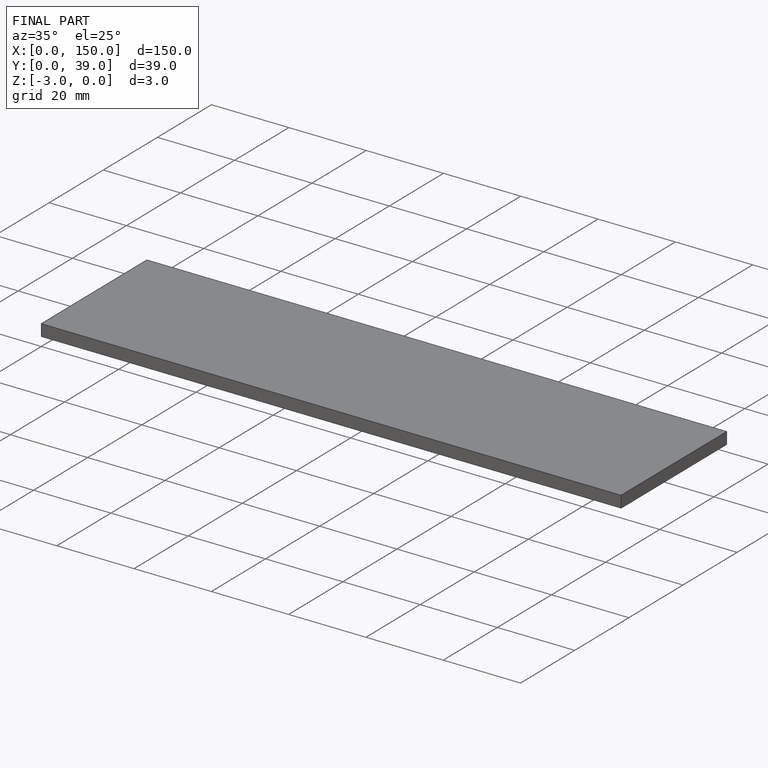
[diagram: finished part — iso view with bounding-box wireframe]
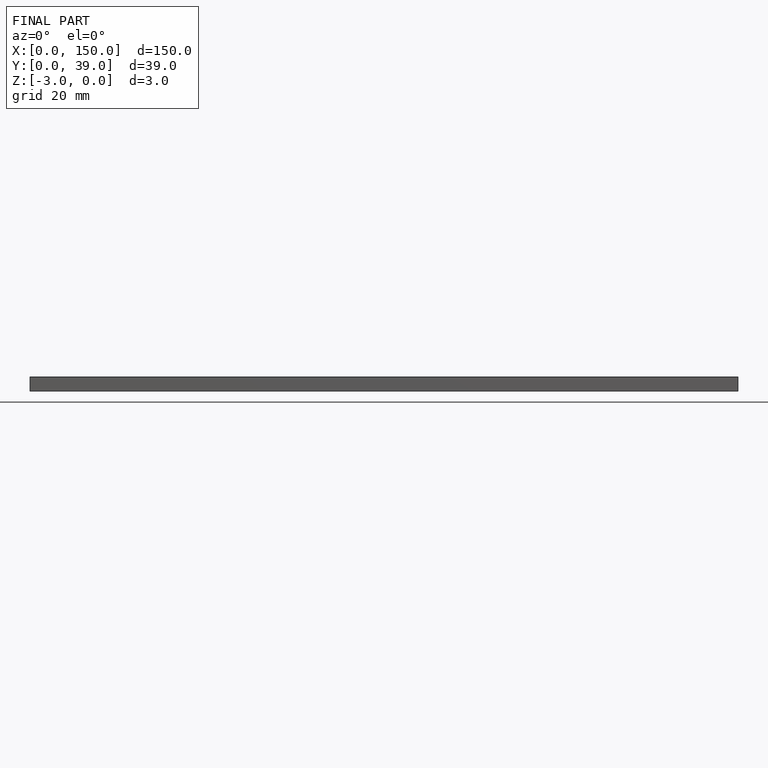
[diagram: finished part — front view with bounding-box wireframe]
